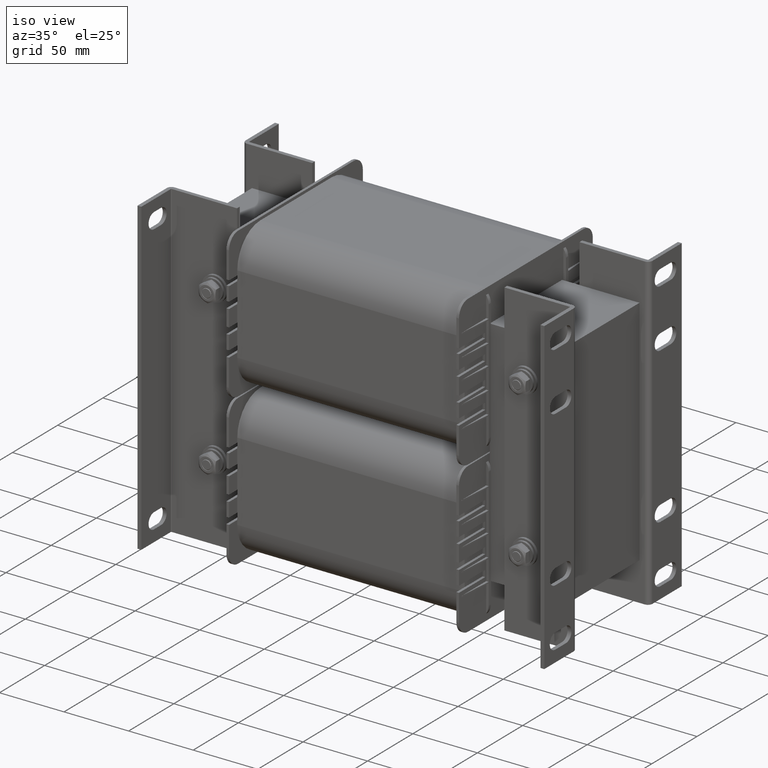
[diagram: clean part render]
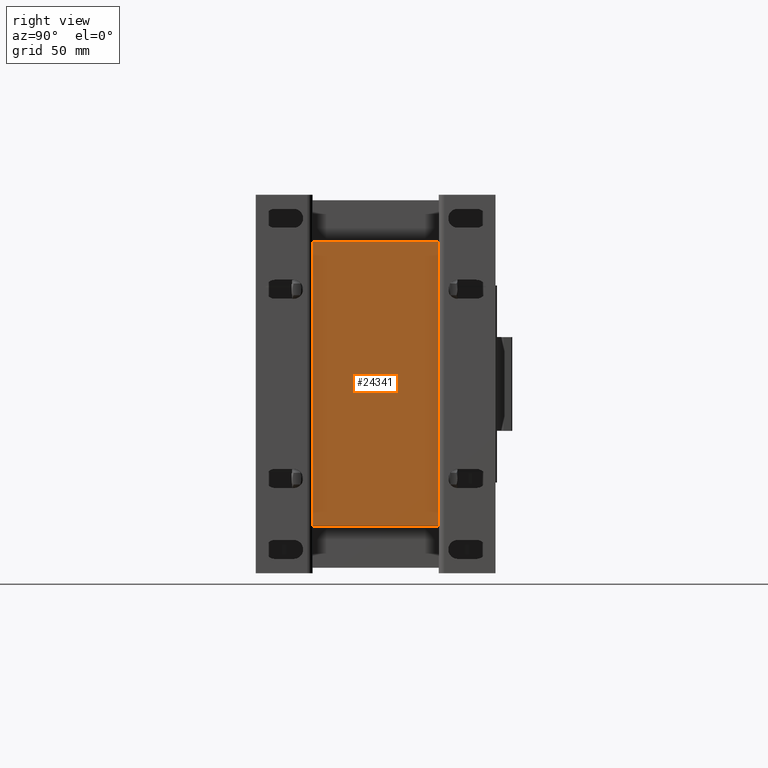
[diagram: tour spotlight — one face highlighted and labeled with its STEP entity id]
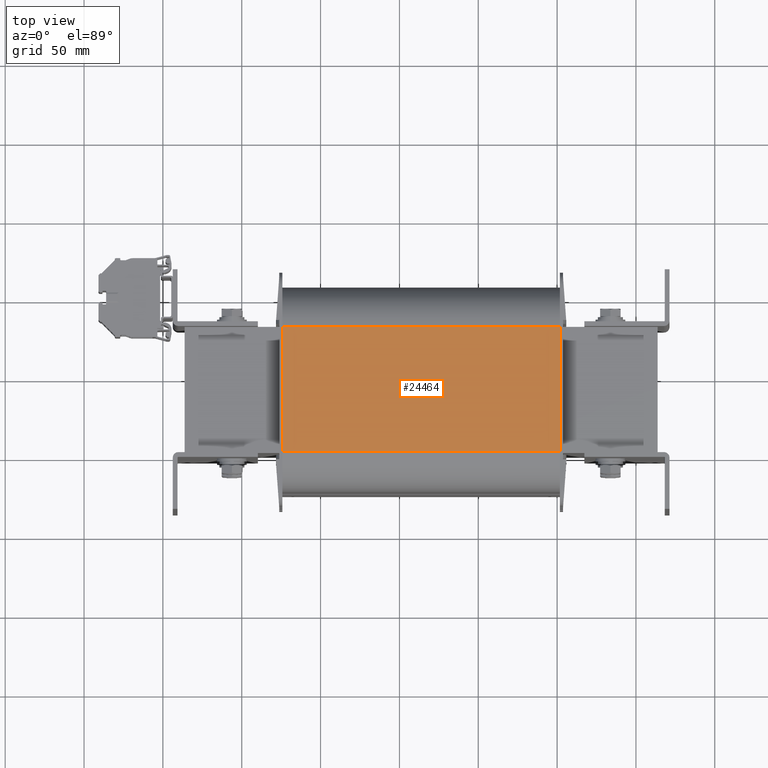
[diagram: tour spotlight — one face highlighted and labeled with its STEP entity id]
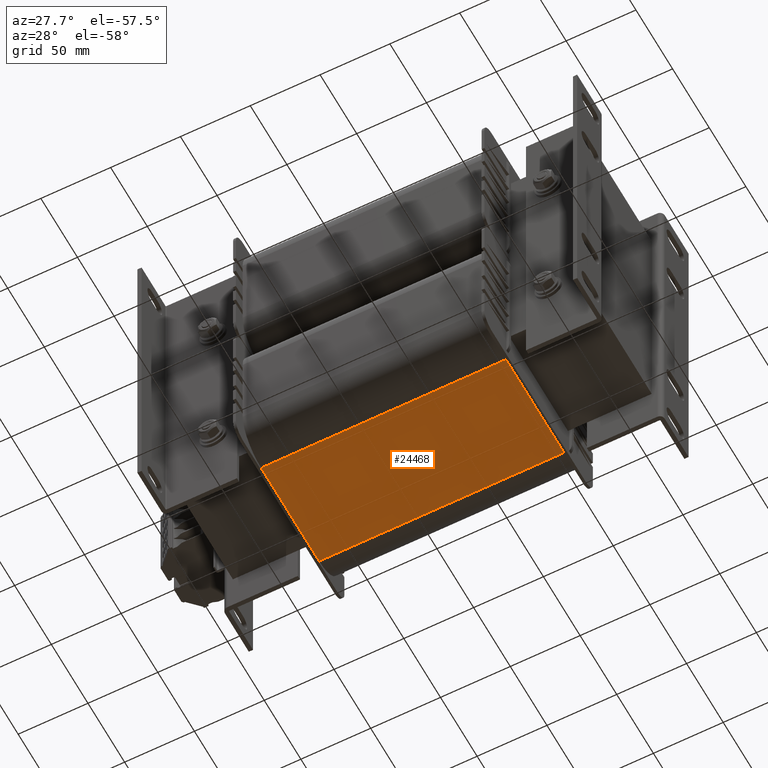
[diagram: tour spotlight — one face highlighted and labeled with its STEP entity id]
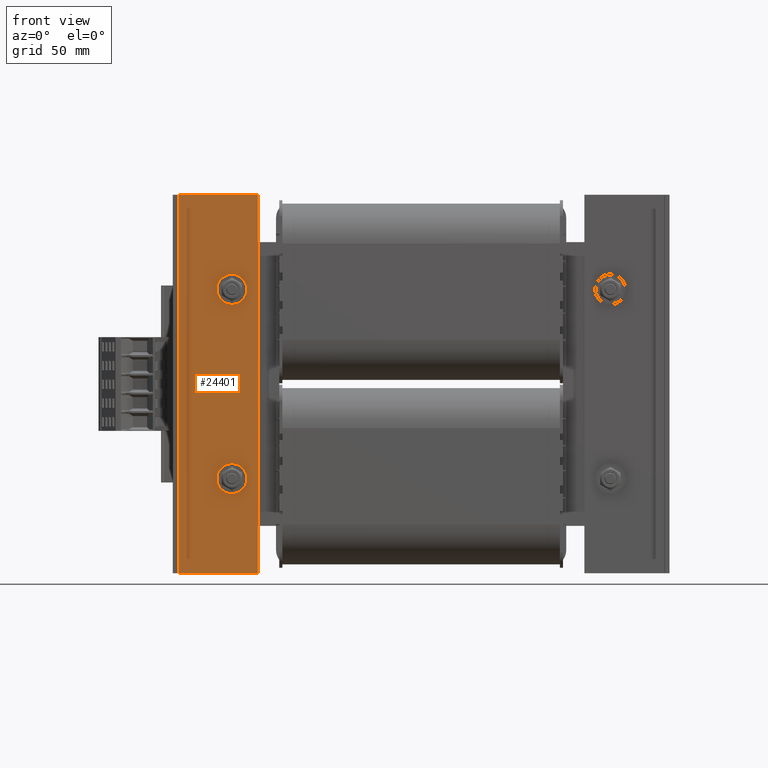
[diagram: tour spotlight — one face highlighted and labeled with its STEP entity id]
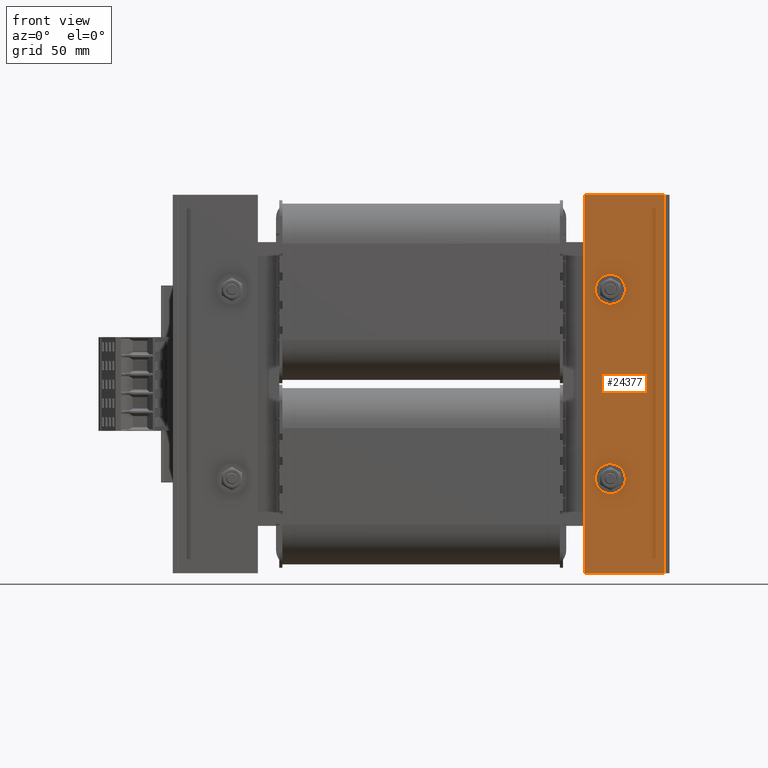
[diagram: tour spotlight — one face highlighted and labeled with its STEP entity id]
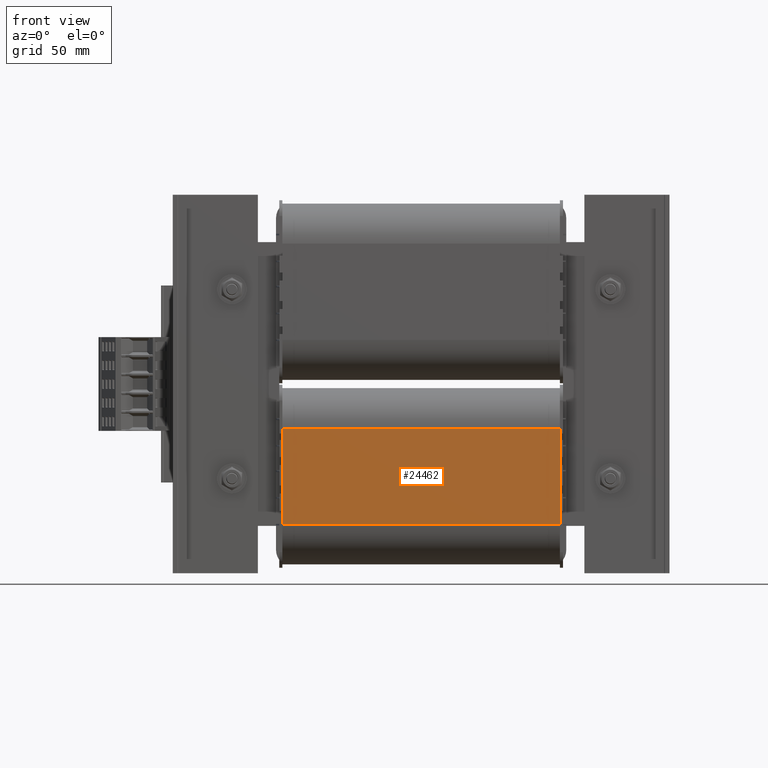
[diagram: tour spotlight — one face highlighted and labeled with its STEP entity id]
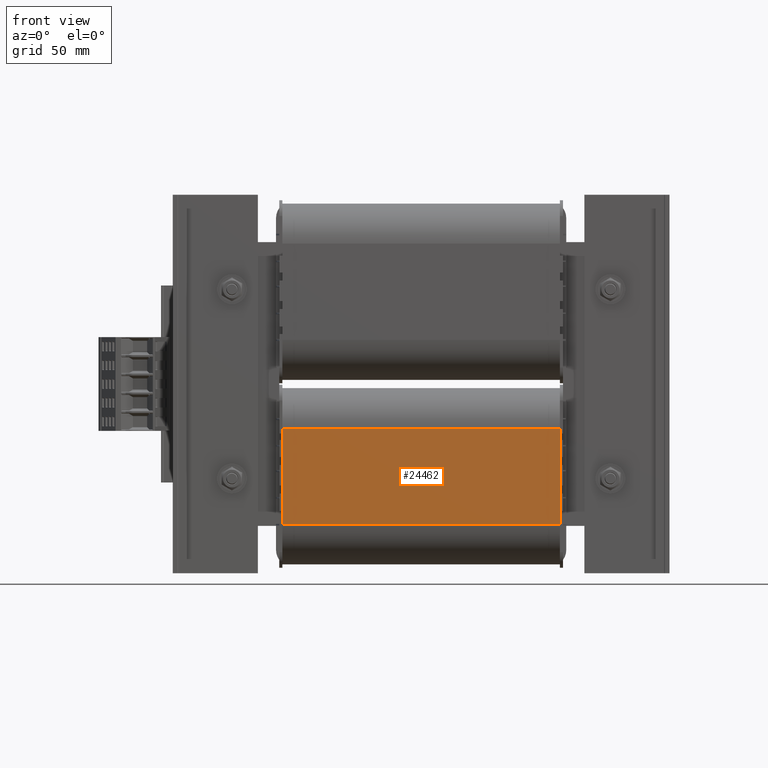
[diagram: tour spotlight — one face highlighted and labeled with its STEP entity id]
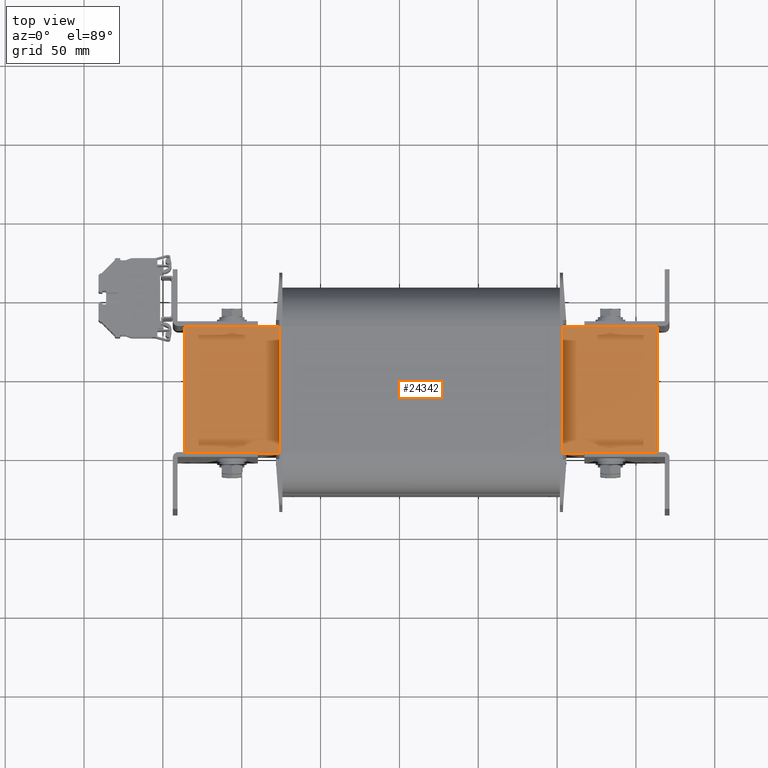
[diagram: tour spotlight — one face highlighted and labeled with its STEP entity id]
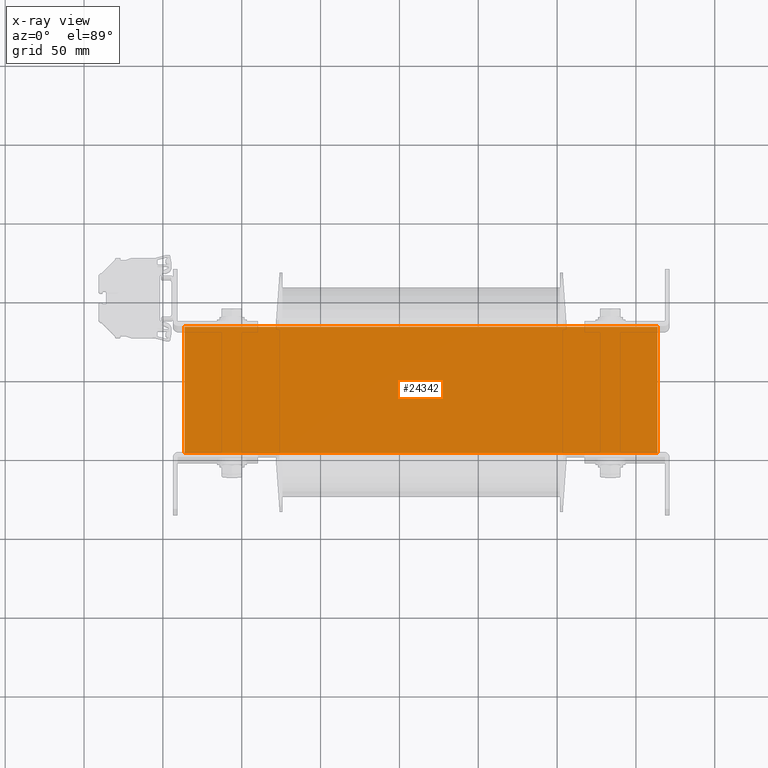
[diagram: x-ray of the same camera — body ghosted, this tour face saturated]
A machine part: a face-by-face anatomy tour. The part has 3242 B-rep faces; the first image is the clean iso view, then the 8 largest visible faces are spotlighted one at a time (largest first), each with its STEP entity span.

Face 1 — right view, entity #24341. In plain terms, the highlighted planar face has unit normal (1, -0, -0).
Definition (entity closure, byte-faithful):
#2387=FACE_OUTER_BOUND('',#3743,.T.);
#3743=EDGE_LOOP('',(#16320,#16321,#16322,#16323));
#5197=LINE('',#35453,#7794);
#5198=LINE('',#35456,#7795);
#5199=LINE('',#35458,#7796);
#5200=LINE('',#35459,#7797);
#7794=VECTOR('',#28317,10.);
#7795=VECTOR('',#28320,10.);
#7796=VECTOR('',#28321,10.);
#7797=VECTOR('',#28322,10.);
#10388=VERTEX_POINT('',#35446);
#10391=VERTEX_POINT('',#35451);
#10392=VERTEX_POINT('',#35455);
#10393=VERTEX_POINT('',#35457);
#12706=EDGE_CURVE('',#10388,#10391,#5197,.T.);
#12707=EDGE_CURVE('',#10392,#10388,#5198,.T.);
#12708=EDGE_CURVE('',#10393,#10391,#5199,.T.);
#12709=EDGE_CURVE('',#10392,#10393,#5200,.T.);
#16320=ORIENTED_EDGE('',*,*,#12707,.T.);
#16321=ORIENTED_EDGE('',*,*,#12706,.T.);
#16322=ORIENTED_EDGE('',*,*,#12708,.F.);
#16323=ORIENTED_EDGE('',*,*,#12709,.F.);
#23499=PLANE('',#26010);
#24341=ADVANCED_FACE('',(#2387),#23499,.T.);
#26010=AXIS2_PLACEMENT_3D('',#35454,#28318,#28319);
#28317=DIRECTION('',(0.,1.,0.));
#28318=DIRECTION('center_axis',(1.,0.,-3.94745964311167E-16));
#28319=DIRECTION('ref_axis',(-3.94745964311167E-16,0.,-1.));
#28320=DIRECTION('',(-3.94745964311167E-16,0.,-1.));
#28321=DIRECTION('',(-3.94745964311167E-16,0.,-1.));
#28322=DIRECTION('',(0.,1.,0.));
#35446=CARTESIAN_POINT('',(0.,0.,0.));
#35451=CARTESIAN_POINT('',(0.,80.,0.));
#35453=CARTESIAN_POINT('',(0.,0.,0.));
#35454=CARTESIAN_POINT('Origin',(7.105427357601E-14,0.,180.));
#35455=CARTESIAN_POINT('',(7.105427357601E-14,0.,180.));
#35456=CARTESIAN_POINT('',(7.105427357601E-14,0.,180.));
#35457=CARTESIAN_POINT('',(7.105427357601E-14,80.,180.));
#35458=CARTESIAN_POINT('',(7.105427357601E-14,80.,180.));
#35459=CARTESIAN_POINT('',(7.105427357601E-14,0.,180.));

Face 2 — top view, entity #24464. In plain terms, the highlighted planar face has unit normal (0, -0, 1).
Definition (entity closure, byte-faithful):
#2510=FACE_OUTER_BOUND('',#3904,.T.);
#3904=EDGE_LOOP('',(#16902,#16903,#16904,#16905));
#5415=LINE('',#36163,#8012);
#5416=LINE('',#36167,#8013);
#5417=LINE('',#36169,#8014);
#5418=LINE('',#36170,#8015);
#8012=VECTOR('',#28941,10.);
#8013=VECTOR('',#28946,10.);
#8014=VECTOR('',#28947,10.);
#8015=VECTOR('',#28948,10.);
#10607=VERTEX_POINT('',#36160);
#10608=VERTEX_POINT('',#36162);
#10609=VERTEX_POINT('',#36166);
#10610=VERTEX_POINT('',#36168);
#13021=EDGE_CURVE('',#10608,#10607,#5415,.T.);
#13023=EDGE_CURVE('',#10609,#10607,#5416,.T.);
#13024=EDGE_CURVE('',#10610,#10609,#5417,.T.);
#13025=EDGE_CURVE('',#10608,#10610,#5418,.T.);
#16902=ORIENTED_EDGE('',*,*,#13023,.F.);
#16903=ORIENTED_EDGE('',*,*,#13024,.F.);
#16904=ORIENTED_EDGE('',*,*,#13025,.F.);
#16905=ORIENTED_EDGE('',*,*,#13021,.T.);
#23579=PLANE('',#26214);
#24464=ADVANCED_FACE('',(#2510),#23579,.T.);
#26214=AXIS2_PLACEMENT_3D('',#36165,#28944,#28945);
#28941=DIRECTION('',(0.,1.,0.));
#28944=DIRECTION('center_axis',(-2.24855296126614E-16,0.,-1.));
#28945=DIRECTION('ref_axis',(-1.,0.,2.24855296126614E-16));
#28946=DIRECTION('',(-1.,0.,2.24855296126614E-16));
#28947=DIRECTION('',(0.,1.,0.));
#28948=DIRECTION('',(1.,0.,-2.24855296126614E-16));
#36160=CARTESIAN_POINT('',(-49.5,178.,-55.8691630029814));
#36162=CARTESIAN_POINT('',(-49.5,2.,-55.8691630029814));
#36163=CARTESIAN_POINT('',(-49.5,2.,-55.8691630029814));
#36165=CARTESIAN_POINT('Origin',(29.5,2.,-55.8691630029814));
#36166=CARTESIAN_POINT('',(29.5,178.,-55.8691630029814));
#36167=CARTESIAN_POINT('',(9.74999999999998,178.,-55.8691630029814));
#36168=CARTESIAN_POINT('',(29.5,2.,-55.8691630029814));
#36169=CARTESIAN_POINT('',(29.5,2.,-55.8691630029814));
#36170=CARTESIAN_POINT('',(9.74999999999998,2.,-55.8691630029814));

Face 3 — auxiliary view, entity #24468. In plain terms, the highlighted planar face has unit normal (-0, 0, -1).
Definition (entity closure, byte-faithful):
#2514=FACE_OUTER_BOUND('',#3908,.T.);
#3908=EDGE_LOOP('',(#16934,#16935,#16936,#16937));
#5431=LINE('',#36195,#8028);
#5432=LINE('',#36199,#8029);
#5433=LINE('',#36201,#8030);
#5434=LINE('',#36202,#8031);
#8028=VECTOR('',#28973,10.);
#8029=VECTOR('',#28978,10.);
#8030=VECTOR('',#28979,10.);
#8031=VECTOR('',#28980,10.);
#10615=VERTEX_POINT('',#36192);
#10616=VERTEX_POINT('',#36194);
#10617=VERTEX_POINT('',#36198);
#10618=VERTEX_POINT('',#36200);
#13041=EDGE_CURVE('',#10616,#10615,#5431,.T.);
#13043=EDGE_CURVE('',#10617,#10615,#5432,.T.);
#13044=EDGE_CURVE('',#10618,#10617,#5433,.T.);
#13045=EDGE_CURVE('',#10616,#10618,#5434,.T.);
#16934=ORIENTED_EDGE('',*,*,#13043,.F.);
#16935=ORIENTED_EDGE('',*,*,#13044,.F.);
#16936=ORIENTED_EDGE('',*,*,#13045,.F.);
#16937=ORIENTED_EDGE('',*,*,#13041,.T.);
#23581=PLANE('',#26222);
#24468=ADVANCED_FACE('',(#2514),#23581,.T.);
#26222=AXIS2_PLACEMENT_3D('',#36197,#28976,#28977);
#28973=DIRECTION('',(0.,1.,0.));
#28976=DIRECTION('center_axis',(1.12427648063307E-16,0.,1.));
#28977=DIRECTION('ref_axis',(1.,0.,-1.12427648063307E-16));
#28978=DIRECTION('',(1.,0.,-1.12427648063307E-16));
#28979=DIRECTION('',(0.,1.,0.));
#28980=DIRECTION('',(-1.,0.,1.12427648063307E-16));
#36192=CARTESIAN_POINT('',(29.5,178.,55.8691630029813));
#36194=CARTESIAN_POINT('',(29.5,2.,55.8691630029813));
#36195=CARTESIAN_POINT('',(29.5,2.,55.8691630029813));
#36197=CARTESIAN_POINT('Origin',(-49.5,2.,55.8691630029813));
#36198=CARTESIAN_POINT('',(-49.5,178.,55.8691630029813));
#36199=CARTESIAN_POINT('',(-29.75,178.,55.8691630029813));
#36200=CARTESIAN_POINT('',(-49.5,2.,55.8691630029813));
#36201=CARTESIAN_POINT('',(-49.5,2.,55.8691630029813));
#36202=CARTESIAN_POINT('',(-29.75,2.,55.8691630029813));

Face 4 — front view, entity #24401. In plain terms, the highlighted planar face has unit normal (0, -1, -0).
Definition (entity closure, byte-faithful):
#1045=FACE_BOUND('',#3832,.T.);
#1046=FACE_BOUND('',#3833,.T.);
#1151=CIRCLE('',#26107,6.50000000000001);
#1152=CIRCLE('',#26109,6.5);
#2447=FACE_OUTER_BOUND('',#3831,.T.);
#3831=EDGE_LOOP('',(#16630,#16631,#16632,#16633));
#3832=EDGE_LOOP('',(#16634));
#3833=EDGE_LOOP('',(#16635));
#5295=LINE('',#35727,#7892);
#5298=LINE('',#35733,#7895);
#5303=LINE('',#35752,#7900);
#5305=LINE('',#35755,#7902);
#7892=VECTOR('',#28599,10.);
#7895=VECTOR('',#28604,10.);
#7900=VECTOR('',#28625,10.);
#7902=VECTOR('',#28629,10.);
#10473=VERTEX_POINT('',#35712);
#10474=VERTEX_POINT('',#35716);
#10477=VERTEX_POINT('',#35731);
#10481=VERTEX_POINT('',#35743);
#10482=VERTEX_POINT('',#35747);
#10483=VERTEX_POINT('',#35751);
#12840=EDGE_CURVE('',#10473,#10474,#5295,.T.);
#12843=EDGE_CURVE('',#10477,#10474,#5298,.T.);
#12849=EDGE_CURVE('',#10481,#10481,#1151,.T.);
#12851=EDGE_CURVE('',#10482,#10482,#1152,.T.);
#12852=EDGE_CURVE('',#10483,#10477,#5303,.T.);
#12854=EDGE_CURVE('',#10473,#10483,#5305,.T.);
#16630=ORIENTED_EDGE('',*,*,#12840,.T.);
#16631=ORIENTED_EDGE('',*,*,#12843,.F.);
#16632=ORIENTED_EDGE('',*,*,#12852,.F.);
#16633=ORIENTED_EDGE('',*,*,#12854,.F.);
#16634=ORIENTED_EDGE('',*,*,#12849,.T.);
#16635=ORIENTED_EDGE('',*,*,#12851,.T.);
#23539=PLANE('',#26112);
#24401=ADVANCED_FACE('',(#2447,#1045,#1046),#23539,.T.);
#26107=AXIS2_PLACEMENT_3D('',#35745,#28616,#28617);
#26109=AXIS2_PLACEMENT_3D('',#35749,#28621,#28622);
#26112=AXIS2_PLACEMENT_3D('',#35756,#28630,#28631);
#28599=DIRECTION('',(2.96059473233375E-16,0.,1.));
#28604=DIRECTION('',(-1.,0.,0.));
#28616=DIRECTION('center_axis',(0.,-1.,0.));
#28617=DIRECTION('ref_axis',(1.,0.,0.));
#28621=DIRECTION('center_axis',(0.,-1.,0.));
#28622=DIRECTION('ref_axis',(1.,0.,0.));
#28625=DIRECTION('',(2.96059473233375E-16,0.,1.));
#28629=DIRECTION('',(1.,0.,0.));
#28630=DIRECTION('center_axis',(0.,1.,0.));
#28631=DIRECTION('ref_axis',(0.,0.,1.));
#35712=CARTESIAN_POINT('',(-50.5,3.,0.));
#35716=CARTESIAN_POINT('',(-50.4999999999999,3.,240.));
#35727=CARTESIAN_POINT('',(-50.5,3.,180.));
#35731=CARTESIAN_POINT('',(7.105427357601E-14,3.,240.));
#35733=CARTESIAN_POINT('',(-53.9999999999999,3.,240.));
#35743=CARTESIAN_POINT('',(-23.,3.,180.));
#35745=CARTESIAN_POINT('Origin',(-16.5,3.,180.));
#35747=CARTESIAN_POINT('',(-23.,3.,60.));
#35749=CARTESIAN_POINT('Origin',(-16.5,3.,60.));
#35751=CARTESIAN_POINT('',(0.,3.,0.));
#35752=CARTESIAN_POINT('',(7.105427357601E-14,3.,240.));
#35755=CARTESIAN_POINT('',(0.,3.,0.));
#35756=CARTESIAN_POINT('Origin',(-27.,3.,120.));

Face 5 — front view, entity #24377. In plain terms, the highlighted planar face has unit normal (-0, -1, -0).
Definition (entity closure, byte-faithful):
#1037=FACE_BOUND('',#3800,.T.);
#1038=FACE_BOUND('',#3801,.T.);
#1135=CIRCLE('',#26066,6.50000000000001);
#1136=CIRCLE('',#26068,6.5);
#2423=FACE_OUTER_BOUND('',#3799,.T.);
#3799=EDGE_LOOP('',(#16514,#16515,#16516,#16517));
#3800=EDGE_LOOP('',(#16518));
#3801=EDGE_LOOP('',(#16519));
#5253=LINE('',#35608,#7850);
#5256=LINE('',#35614,#7853);
#5261=LINE('',#35633,#7858);
#5263=LINE('',#35636,#7860);
#7850=VECTOR('',#28475,10.);
#7853=VECTOR('',#28480,10.);
#7858=VECTOR('',#28501,10.);
#7860=VECTOR('',#28505,10.);
#10437=VERTEX_POINT('',#35593);
#10438=VERTEX_POINT('',#35597);
#10441=VERTEX_POINT('',#35612);
#10445=VERTEX_POINT('',#35624);
#10446=VERTEX_POINT('',#35628);
#10447=VERTEX_POINT('',#35632);
#12782=EDGE_CURVE('',#10437,#10438,#5253,.T.);
#12785=EDGE_CURVE('',#10441,#10438,#5256,.T.);
#12791=EDGE_CURVE('',#10445,#10445,#1135,.T.);
#12793=EDGE_CURVE('',#10446,#10446,#1136,.T.);
#12794=EDGE_CURVE('',#10447,#10441,#5261,.T.);
#12796=EDGE_CURVE('',#10437,#10447,#5263,.T.);
#16514=ORIENTED_EDGE('',*,*,#12782,.T.);
#16515=ORIENTED_EDGE('',*,*,#12785,.F.);
#16516=ORIENTED_EDGE('',*,*,#12794,.F.);
#16517=ORIENTED_EDGE('',*,*,#12796,.F.);
#16518=ORIENTED_EDGE('',*,*,#12791,.T.);
#16519=ORIENTED_EDGE('',*,*,#12793,.T.);
#23523=PLANE('',#26071);
#24377=ADVANCED_FACE('',(#2423,#1037,#1038),#23523,.T.);
#26066=AXIS2_PLACEMENT_3D('',#35626,#28492,#28493);
#26068=AXIS2_PLACEMENT_3D('',#35630,#28497,#28498);
#26071=AXIS2_PLACEMENT_3D('',#35637,#28506,#28507);
#28475=DIRECTION('',(2.96059473233375E-16,0.,1.));
#28480=DIRECTION('',(-1.,0.,0.));
#28492=DIRECTION('center_axis',(0.,-1.,0.));
#28493=DIRECTION('ref_axis',(1.,0.,0.));
#28497=DIRECTION('center_axis',(0.,-1.,0.));
#28498=DIRECTION('ref_axis',(1.,0.,0.));
#28501=DIRECTION('',(2.96059473233375E-16,0.,1.));
#28505=DIRECTION('',(1.,0.,0.));
#28506=DIRECTION('center_axis',(0.,1.,0.));
#28507=DIRECTION('ref_axis',(0.,0.,1.));
#35593=CARTESIAN_POINT('',(-50.5,3.,0.));
#35597=CARTESIAN_POINT('',(-50.4999999999999,3.,240.));
#35608=CARTESIAN_POINT('',(-50.5,3.,180.));
#35612=CARTESIAN_POINT('',(7.105427357601E-14,3.,240.));
#35614=CARTESIAN_POINT('',(-53.9999999999999,3.,240.));
#35624=CARTESIAN_POINT('',(-23.,3.,180.));
#35626=CARTESIAN_POINT('Origin',(-16.5,3.,180.));
#35628=CARTESIAN_POINT('',(-23.,3.,60.));
#35630=CARTESIAN_POINT('Origin',(-16.5,3.,60.));
#35632=CARTESIAN_POINT('',(0.,3.,0.));
#35633=CARTESIAN_POINT('',(7.105427357601E-14,3.,240.));
#35636=CARTESIAN_POINT('',(0.,3.,0.));
#35637=CARTESIAN_POINT('Origin',(-27.,3.,120.));

Face 6 — front view, entity #24462. In plain terms, the highlighted planar face has unit normal (-0, -1, -0).
Definition (entity closure, byte-faithful):
#2508=FACE_OUTER_BOUND('',#3902,.T.);
#3902=EDGE_LOOP('',(#16878,#16879,#16880,#16881,#16882,#16883,#16884,#16885,
#16886,#16887,#16888,#16889,#16890,#16891,#16892,#16893,#16894,#16895,#16896,
#16897));
#5342=LINE('',#36006,#7939);
#5346=LINE('',#36015,#7943);
#5364=LINE('',#36057,#7961);
#5370=LINE('',#36069,#7967);
#5374=LINE('',#36078,#7971);
#5378=LINE('',#36087,#7975);
#5382=LINE('',#36096,#7979);
#5402=LINE('',#36141,#7999);
#5403=LINE('',#36144,#8000);
#5404=LINE('',#36146,#8001);
#5405=LINE('',#36147,#8002);
#5406=LINE('',#36148,#8003);
#5407=LINE('',#36149,#8004);
#5408=LINE('',#36150,#8005);
#5409=LINE('',#36152,#8006);
#5410=LINE('',#36154,#8007);
#5411=LINE('',#36155,#8008);
#5412=LINE('',#36156,#8009);
#5413=LINE('',#36157,#8010);
#5414=LINE('',#36158,#8011);
#7939=VECTOR('',#28832,10.);
#7943=VECTOR('',#28838,10.);
#7961=VECTOR('',#28866,10.);
#7967=VECTOR('',#28874,10.);
#7971=VECTOR('',#28880,10.);
#7975=VECTOR('',#28886,10.);
#7979=VECTOR('',#28892,10.);
#7999=VECTOR('',#28922,10.);
#8000=VECTOR('',#28925,10.);
#8001=VECTOR('',#28926,10.);
#8002=VECTOR('',#28927,10.);
#8003=VECTOR('',#28928,10.);
#8004=VECTOR('',#28929,10.);
#8005=VECTOR('',#28930,10.);
#8006=VECTOR('',#28931,10.);
#8007=VECTOR('',#28932,10.);
#8008=VECTOR('',#28933,10.);
#8009=VECTOR('',#28934,10.);
#8010=VECTOR('',#28935,10.);
#8011=VECTOR('',#28936,10.);
#10540=VERTEX_POINT('',#36000);
#10542=VERTEX_POINT('',#36004);
#10544=VERTEX_POINT('',#36009);
#10546=VERTEX_POINT('',#36013);
#10563=VERTEX_POINT('',#36053);
#10565=VERTEX_POINT('',#36056);
#10568=VERTEX_POINT('',#36063);
#10570=VERTEX_POINT('',#36067);
#10571=VERTEX_POINT('',#36071);
#10574=VERTEX_POINT('',#36076);
#10575=VERTEX_POINT('',#36080);
#10578=VERTEX_POINT('',#36085);
#10579=VERTEX_POINT('',#36089);
#10582=VERTEX_POINT('',#36094);
#10599=VERTEX_POINT('',#36134);
#10602=VERTEX_POINT('',#36139);
#10603=VERTEX_POINT('',#36143);
#10604=VERTEX_POINT('',#36145);
#10605=VERTEX_POINT('',#36151);
#10606=VERTEX_POINT('',#36153);
#12947=EDGE_CURVE('',#10542,#10540,#5342,.T.);
#12951=EDGE_CURVE('',#10546,#10544,#5346,.T.);
#12969=EDGE_CURVE('',#10563,#10565,#5364,.T.);
#12975=EDGE_CURVE('',#10570,#10568,#5370,.T.);
#12979=EDGE_CURVE('',#10571,#10574,#5374,.T.);
#12983=EDGE_CURVE('',#10575,#10578,#5378,.T.);
#12987=EDGE_CURVE('',#10579,#10582,#5382,.T.);
#13007=EDGE_CURVE('',#10599,#10602,#5402,.T.);
#13008=EDGE_CURVE('',#10603,#10546,#5403,.T.);
#13009=EDGE_CURVE('',#10604,#10603,#5404,.T.);
#13010=EDGE_CURVE('',#10599,#10604,#5405,.T.);
#13011=EDGE_CURVE('',#10571,#10602,#5406,.T.);
#13012=EDGE_CURVE('',#10575,#10574,#5407,.T.);
#13013=EDGE_CURVE('',#10579,#10578,#5408,.T.);
#13014=EDGE_CURVE('',#10605,#10582,#5409,.T.);
#13015=EDGE_CURVE('',#10605,#10606,#5410,.T.);
#13016=EDGE_CURVE('',#10565,#10606,#5411,.T.);
#13017=EDGE_CURVE('',#10568,#10563,#5412,.T.);
#13018=EDGE_CURVE('',#10540,#10570,#5413,.T.);
#13019=EDGE_CURVE('',#10544,#10542,#5414,.T.);
#16878=ORIENTED_EDGE('',*,*,#13008,.F.);
#16879=ORIENTED_EDGE('',*,*,#13009,.F.);
#16880=ORIENTED_EDGE('',*,*,#13010,.F.);
#16881=ORIENTED_EDGE('',*,*,#13007,.T.);
#16882=ORIENTED_EDGE('',*,*,#13011,.F.);
#16883=ORIENTED_EDGE('',*,*,#12979,.T.);
#16884=ORIENTED_EDGE('',*,*,#13012,.F.);
#16885=ORIENTED_EDGE('',*,*,#12983,.T.);
#16886=ORIENTED_EDGE('',*,*,#13013,.F.);
#16887=ORIENTED_EDGE('',*,*,#12987,.T.);
#16888=ORIENTED_EDGE('',*,*,#13014,.F.);
#16889=ORIENTED_EDGE('',*,*,#13015,.T.);
#16890=ORIENTED_EDGE('',*,*,#13016,.F.);
#16891=ORIENTED_EDGE('',*,*,#12969,.F.);
#16892=ORIENTED_EDGE('',*,*,#13017,.F.);
#16893=ORIENTED_EDGE('',*,*,#12975,.F.);
#16894=ORIENTED_EDGE('',*,*,#13018,.F.);
#16895=ORIENTED_EDGE('',*,*,#12947,.F.);
#16896=ORIENTED_EDGE('',*,*,#13019,.F.);
#16897=ORIENTED_EDGE('',*,*,#12951,.F.);
#23578=PLANE('',#26210);
#24462=ADVANCED_FACE('',(#2508),#23578,.T.);
#26210=AXIS2_PLACEMENT_3D('',#36142,#28923,#28924);
#28832=DIRECTION('',(0.,0.,1.));
#28838=DIRECTION('',(0.,0.,1.));
#28866=DIRECTION('',(0.,0.,1.));
#28874=DIRECTION('',(0.,0.,1.));
#28880=DIRECTION('',(0.,0.,1.));
#28886=DIRECTION('',(0.,0.,1.));
#28892=DIRECTION('',(0.,0.,1.));
#28922=DIRECTION('',(0.,0.,1.));
#28923=DIRECTION('center_axis',(-1.,0.,0.));
#28924=DIRECTION('ref_axis',(0.,0.,1.));
#28925=DIRECTION('',(0.,0.,1.));
#28926=DIRECTION('',(0.,1.,0.));
#28927=DIRECTION('',(0.,0.,-1.));
#28928=DIRECTION('',(0.,0.,-1.));
#28929=DIRECTION('',(0.,0.,-1.));
#28930=DIRECTION('',(0.,0.,-1.));
#28931=DIRECTION('',(0.,0.,-1.));
#28932=DIRECTION('',(0.,1.,0.));
#28933=DIRECTION('',(0.,0.,1.));
#28934=DIRECTION('',(0.,0.,1.));
#28935=DIRECTION('',(0.,0.,1.));
#28936=DIRECTION('',(0.,0.,1.));
#36000=CARTESIAN_POINT('',(-74.8691630029814,178.,-7.));
#36004=CARTESIAN_POINT('',(-74.8691630029814,178.,-12.));
#36006=CARTESIAN_POINT('',(-74.8691630029814,178.,-15.25));
#36009=CARTESIAN_POINT('',(-74.8691630029814,178.,-23.));
#36013=CARTESIAN_POINT('',(-74.8691630029814,178.,-27.));
#36015=CARTESIAN_POINT('',(-74.8691630029814,178.,-15.25));
#36053=CARTESIAN_POINT('',(-74.8691630029814,178.,22.));
#36056=CARTESIAN_POINT('',(-74.8691630029814,178.,27.));
#36057=CARTESIAN_POINT('',(-74.8691630029814,178.,-15.25));
#36063=CARTESIAN_POINT('',(-74.8691630029814,178.,11.));
#36067=CARTESIAN_POINT('',(-74.8691630029814,178.,6.));
#36069=CARTESIAN_POINT('',(-74.8691630029814,178.,-15.25));
#36071=CARTESIAN_POINT('',(-74.8691630029814,2.,-12.));
#36076=CARTESIAN_POINT('',(-74.8691630029814,2.,-7.));
#36078=CARTESIAN_POINT('',(-74.8691630029814,2.,-30.5));
#36080=CARTESIAN_POINT('',(-74.8691630029814,2.,5.99999999999999));
#36085=CARTESIAN_POINT('',(-74.8691630029814,2.,11.));
#36087=CARTESIAN_POINT('',(-74.8691630029814,2.,-30.5));
#36089=CARTESIAN_POINT('',(-74.8691630029814,2.,22.));
#36094=CARTESIAN_POINT('',(-74.8691630029814,2.,27.));
#36096=CARTESIAN_POINT('',(-74.8691630029814,2.,-30.5));
#36134=CARTESIAN_POINT('',(-74.8691630029814,2.,-27.));
#36139=CARTESIAN_POINT('',(-74.8691630029814,2.,-23.));
#36141=CARTESIAN_POINT('',(-74.8691630029814,2.,-30.5));
#36142=CARTESIAN_POINT('Origin',(-74.8691630029814,2.,-30.5));
#36143=CARTESIAN_POINT('',(-74.8691630029814,178.,-30.5));
#36144=CARTESIAN_POINT('',(-74.8691630029814,178.,-15.25));
#36145=CARTESIAN_POINT('',(-74.8691630029814,2.,-30.5));
#36146=CARTESIAN_POINT('',(-74.8691630029814,2.,-30.5));
#36147=CARTESIAN_POINT('',(-74.8691630029814,2.,-15.25));
#36148=CARTESIAN_POINT('',(-74.8691630029814,2.,-15.25));
#36149=CARTESIAN_POINT('',(-74.8691630029814,2.,-15.25));
#36150=CARTESIAN_POINT('',(-74.8691630029814,2.,-15.25));
#36151=CARTESIAN_POINT('',(-74.8691630029814,2.,30.5));
#36152=CARTESIAN_POINT('',(-74.8691630029814,2.,-15.25));
#36153=CARTESIAN_POINT('',(-74.8691630029814,178.,30.5));
#36154=CARTESIAN_POINT('',(-74.8691630029814,2.,30.5));
#36155=CARTESIAN_POINT('',(-74.8691630029814,178.,-15.25));
#36156=CARTESIAN_POINT('',(-74.8691630029814,178.,-15.25));
#36157=CARTESIAN_POINT('',(-74.8691630029814,178.,-15.25));
#36158=CARTESIAN_POINT('',(-74.8691630029814,178.,-15.25));

Face 7 — front view, entity #24462. In plain terms, the highlighted planar face has unit normal (-0, -1, -0).
Definition (entity closure, byte-faithful):
#2508=FACE_OUTER_BOUND('',#3902,.T.);
#3902=EDGE_LOOP('',(#16878,#16879,#16880,#16881,#16882,#16883,#16884,#16885,
#16886,#16887,#16888,#16889,#16890,#16891,#16892,#16893,#16894,#16895,#16896,
#16897));
#5342=LINE('',#36006,#7939);
#5346=LINE('',#36015,#7943);
#5364=LINE('',#36057,#7961);
#5370=LINE('',#36069,#7967);
#5374=LINE('',#36078,#7971);
#5378=LINE('',#36087,#7975);
#5382=LINE('',#36096,#7979);
#5402=LINE('',#36141,#7999);
#5403=LINE('',#36144,#8000);
#5404=LINE('',#36146,#8001);
#5405=LINE('',#36147,#8002);
#5406=LINE('',#36148,#8003);
#5407=LINE('',#36149,#8004);
#5408=LINE('',#36150,#8005);
#5409=LINE('',#36152,#8006);
#5410=LINE('',#36154,#8007);
#5411=LINE('',#36155,#8008);
#5412=LINE('',#36156,#8009);
#5413=LINE('',#36157,#8010);
#5414=LINE('',#36158,#8011);
#7939=VECTOR('',#28832,10.);
#7943=VECTOR('',#28838,10.);
#7961=VECTOR('',#28866,10.);
#7967=VECTOR('',#28874,10.);
#7971=VECTOR('',#28880,10.);
#7975=VECTOR('',#28886,10.);
#7979=VECTOR('',#28892,10.);
#7999=VECTOR('',#28922,10.);
#8000=VECTOR('',#28925,10.);
#8001=VECTOR('',#28926,10.);
#8002=VECTOR('',#28927,10.);
#8003=VECTOR('',#28928,10.);
#8004=VECTOR('',#28929,10.);
#8005=VECTOR('',#28930,10.);
#8006=VECTOR('',#28931,10.);
#8007=VECTOR('',#28932,10.);
#8008=VECTOR('',#28933,10.);
#8009=VECTOR('',#28934,10.);
#8010=VECTOR('',#28935,10.);
#8011=VECTOR('',#28936,10.);
#10540=VERTEX_POINT('',#36000);
#10542=VERTEX_POINT('',#36004);
#10544=VERTEX_POINT('',#36009);
#10546=VERTEX_POINT('',#36013);
#10563=VERTEX_POINT('',#36053);
#10565=VERTEX_POINT('',#36056);
#10568=VERTEX_POINT('',#36063);
#10570=VERTEX_POINT('',#36067);
#10571=VERTEX_POINT('',#36071);
#10574=VERTEX_POINT('',#36076);
#10575=VERTEX_POINT('',#36080);
#10578=VERTEX_POINT('',#36085);
#10579=VERTEX_POINT('',#36089);
#10582=VERTEX_POINT('',#36094);
#10599=VERTEX_POINT('',#36134);
#10602=VERTEX_POINT('',#36139);
#10603=VERTEX_POINT('',#36143);
#10604=VERTEX_POINT('',#36145);
#10605=VERTEX_POINT('',#36151);
#10606=VERTEX_POINT('',#36153);
#12947=EDGE_CURVE('',#10542,#10540,#5342,.T.);
#12951=EDGE_CURVE('',#10546,#10544,#5346,.T.);
#12969=EDGE_CURVE('',#10563,#10565,#5364,.T.);
#12975=EDGE_CURVE('',#10570,#10568,#5370,.T.);
#12979=EDGE_CURVE('',#10571,#10574,#5374,.T.);
#12983=EDGE_CURVE('',#10575,#10578,#5378,.T.);
#12987=EDGE_CURVE('',#10579,#10582,#5382,.T.);
#13007=EDGE_CURVE('',#10599,#10602,#5402,.T.);
#13008=EDGE_CURVE('',#10603,#10546,#5403,.T.);
#13009=EDGE_CURVE('',#10604,#10603,#5404,.T.);
#13010=EDGE_CURVE('',#10599,#10604,#5405,.T.);
#13011=EDGE_CURVE('',#10571,#10602,#5406,.T.);
#13012=EDGE_CURVE('',#10575,#10574,#5407,.T.);
#13013=EDGE_CURVE('',#10579,#10578,#5408,.T.);
#13014=EDGE_CURVE('',#10605,#10582,#5409,.T.);
#13015=EDGE_CURVE('',#10605,#10606,#5410,.T.);
#13016=EDGE_CURVE('',#10565,#10606,#5411,.T.);
#13017=EDGE_CURVE('',#10568,#10563,#5412,.T.);
#13018=EDGE_CURVE('',#10540,#10570,#5413,.T.);
#13019=EDGE_CURVE('',#10544,#10542,#5414,.T.);
#16878=ORIENTED_EDGE('',*,*,#13008,.F.);
#16879=ORIENTED_EDGE('',*,*,#13009,.F.);
#16880=ORIENTED_EDGE('',*,*,#13010,.F.);
#16881=ORIENTED_EDGE('',*,*,#13007,.T.);
#16882=ORIENTED_EDGE('',*,*,#13011,.F.);
#16883=ORIENTED_EDGE('',*,*,#12979,.T.);
#16884=ORIENTED_EDGE('',*,*,#13012,.F.);
#16885=ORIENTED_EDGE('',*,*,#12983,.T.);
#16886=ORIENTED_EDGE('',*,*,#13013,.F.);
#16887=ORIENTED_EDGE('',*,*,#12987,.T.);
#16888=ORIENTED_EDGE('',*,*,#13014,.F.);
#16889=ORIENTED_EDGE('',*,*,#13015,.T.);
#16890=ORIENTED_EDGE('',*,*,#13016,.F.);
#16891=ORIENTED_EDGE('',*,*,#12969,.F.);
#16892=ORIENTED_EDGE('',*,*,#13017,.F.);
#16893=ORIENTED_EDGE('',*,*,#12975,.F.);
#16894=ORIENTED_EDGE('',*,*,#13018,.F.);
#16895=ORIENTED_EDGE('',*,*,#12947,.F.);
#16896=ORIENTED_EDGE('',*,*,#13019,.F.);
#16897=ORIENTED_EDGE('',*,*,#12951,.F.);
#23578=PLANE('',#26210);
#24462=ADVANCED_FACE('',(#2508),#23578,.T.);
#26210=AXIS2_PLACEMENT_3D('',#36142,#28923,#28924);
#28832=DIRECTION('',(0.,0.,1.));
#28838=DIRECTION('',(0.,0.,1.));
#28866=DIRECTION('',(0.,0.,1.));
#28874=DIRECTION('',(0.,0.,1.));
#28880=DIRECTION('',(0.,0.,1.));
#28886=DIRECTION('',(0.,0.,1.));
#28892=DIRECTION('',(0.,0.,1.));
#28922=DIRECTION('',(0.,0.,1.));
#28923=DIRECTION('center_axis',(-1.,0.,0.));
#28924=DIRECTION('ref_axis',(0.,0.,1.));
#28925=DIRECTION('',(0.,0.,1.));
#28926=DIRECTION('',(0.,1.,0.));
#28927=DIRECTION('',(0.,0.,-1.));
#28928=DIRECTION('',(0.,0.,-1.));
#28929=DIRECTION('',(0.,0.,-1.));
#28930=DIRECTION('',(0.,0.,-1.));
#28931=DIRECTION('',(0.,0.,-1.));
#28932=DIRECTION('',(0.,1.,0.));
#28933=DIRECTION('',(0.,0.,1.));
#28934=DIRECTION('',(0.,0.,1.));
#28935=DIRECTION('',(0.,0.,1.));
#28936=DIRECTION('',(0.,0.,1.));
#36000=CARTESIAN_POINT('',(-74.8691630029814,178.,-7.));
#36004=CARTESIAN_POINT('',(-74.8691630029814,178.,-12.));
#36006=CARTESIAN_POINT('',(-74.8691630029814,178.,-15.25));
#36009=CARTESIAN_POINT('',(-74.8691630029814,178.,-23.));
#36013=CARTESIAN_POINT('',(-74.8691630029814,178.,-27.));
#36015=CARTESIAN_POINT('',(-74.8691630029814,178.,-15.25));
#36053=CARTESIAN_POINT('',(-74.8691630029814,178.,22.));
#36056=CARTESIAN_POINT('',(-74.8691630029814,178.,27.));
#36057=CARTESIAN_POINT('',(-74.8691630029814,178.,-15.25));
#36063=CARTESIAN_POINT('',(-74.8691630029814,178.,11.));
#36067=CARTESIAN_POINT('',(-74.8691630029814,178.,6.));
#36069=CARTESIAN_POINT('',(-74.8691630029814,178.,-15.25));
#36071=CARTESIAN_POINT('',(-74.8691630029814,2.,-12.));
#36076=CARTESIAN_POINT('',(-74.8691630029814,2.,-7.));
#36078=CARTESIAN_POINT('',(-74.8691630029814,2.,-30.5));
#36080=CARTESIAN_POINT('',(-74.8691630029814,2.,5.99999999999999));
#36085=CARTESIAN_POINT('',(-74.8691630029814,2.,11.));
#36087=CARTESIAN_POINT('',(-74.8691630029814,2.,-30.5));
#36089=CARTESIAN_POINT('',(-74.8691630029814,2.,22.));
#36094=CARTESIAN_POINT('',(-74.8691630029814,2.,27.));
#36096=CARTESIAN_POINT('',(-74.8691630029814,2.,-30.5));
#36134=CARTESIAN_POINT('',(-74.8691630029814,2.,-27.));
#36139=CARTESIAN_POINT('',(-74.8691630029814,2.,-23.));
#36141=CARTESIAN_POINT('',(-74.8691630029814,2.,-30.5));
#36142=CARTESIAN_POINT('Origin',(-74.8691630029814,2.,-30.5));
#36143=CARTESIAN_POINT('',(-74.8691630029814,178.,-30.5));
#36144=CARTESIAN_POINT('',(-74.8691630029814,178.,-15.25));
#36145=CARTESIAN_POINT('',(-74.8691630029814,2.,-30.5));
#36146=CARTESIAN_POINT('',(-74.8691630029814,2.,-30.5));
#36147=CARTESIAN_POINT('',(-74.8691630029814,2.,-15.25));
#36148=CARTESIAN_POINT('',(-74.8691630029814,2.,-15.25));
#36149=CARTESIAN_POINT('',(-74.8691630029814,2.,-15.25));
#36150=CARTESIAN_POINT('',(-74.8691630029814,2.,-15.25));
#36151=CARTESIAN_POINT('',(-74.8691630029814,2.,30.5));
#36152=CARTESIAN_POINT('',(-74.8691630029814,2.,-15.25));
#36153=CARTESIAN_POINT('',(-74.8691630029814,178.,30.5));
#36154=CARTESIAN_POINT('',(-74.8691630029814,2.,30.5));
#36155=CARTESIAN_POINT('',(-74.8691630029814,178.,-15.25));
#36156=CARTESIAN_POINT('',(-74.8691630029814,178.,-15.25));
#36157=CARTESIAN_POINT('',(-74.8691630029814,178.,-15.25));
#36158=CARTESIAN_POINT('',(-74.8691630029814,178.,-15.25));

Face 8 — top view, entity #24342. An x-ray twin of the same camera follows (body ghosted, this face saturated) — the face is partly hidden behind the body. In plain terms, the highlighted planar face has unit normal (0, -0, 1).
Definition (entity closure, byte-faithful):
#2388=FACE_OUTER_BOUND('',#3744,.T.);
#3744=EDGE_LOOP('',(#16324,#16325,#16326,#16327));
#5200=LINE('',#35459,#7797);
#5201=LINE('',#35462,#7798);
#5202=LINE('',#35464,#7799);
#5203=LINE('',#35465,#7800);
#7797=VECTOR('',#28322,10.);
#7798=VECTOR('',#28325,10.);
#7799=VECTOR('',#28326,10.);
#7800=VECTOR('',#28327,10.);
#10392=VERTEX_POINT('',#35455);
#10393=VERTEX_POINT('',#35457);
#10394=VERTEX_POINT('',#35461);
#10395=VERTEX_POINT('',#35463);
#12709=EDGE_CURVE('',#10392,#10393,#5200,.T.);
#12710=EDGE_CURVE('',#10394,#10392,#5201,.T.);
#12711=EDGE_CURVE('',#10395,#10393,#5202,.T.);
#12712=EDGE_CURVE('',#10394,#10395,#5203,.T.);
#16324=ORIENTED_EDGE('',*,*,#12710,.T.);
#16325=ORIENTED_EDGE('',*,*,#12709,.T.);
#16326=ORIENTED_EDGE('',*,*,#12711,.F.);
#16327=ORIENTED_EDGE('',*,*,#12712,.F.);
#23500=PLANE('',#26011);
#24342=ADVANCED_FACE('',(#2388),#23500,.T.);
#26011=AXIS2_PLACEMENT_3D('',#35460,#28323,#28324);
#28322=DIRECTION('',(0.,1.,0.));
#28323=DIRECTION('center_axis',(0.,0.,1.));
#28324=DIRECTION('ref_axis',(1.,0.,0.));
#28325=DIRECTION('',(1.,0.,0.));
#28326=DIRECTION('',(1.,0.,0.));
#28327=DIRECTION('',(0.,1.,0.));
#35455=CARTESIAN_POINT('',(7.105427357601E-14,0.,180.));
#35457=CARTESIAN_POINT('',(7.105427357601E-14,80.,180.));
#35459=CARTESIAN_POINT('',(7.105427357601E-14,0.,180.));
#35460=CARTESIAN_POINT('Origin',(-300.,0.,180.));
#35461=CARTESIAN_POINT('',(-300.,0.,180.));
#35462=CARTESIAN_POINT('',(-300.,0.,180.));
#35463=CARTESIAN_POINT('',(-300.,80.,180.));
#35464=CARTESIAN_POINT('',(-300.,80.,180.));
#35465=CARTESIAN_POINT('',(-300.,0.,180.));